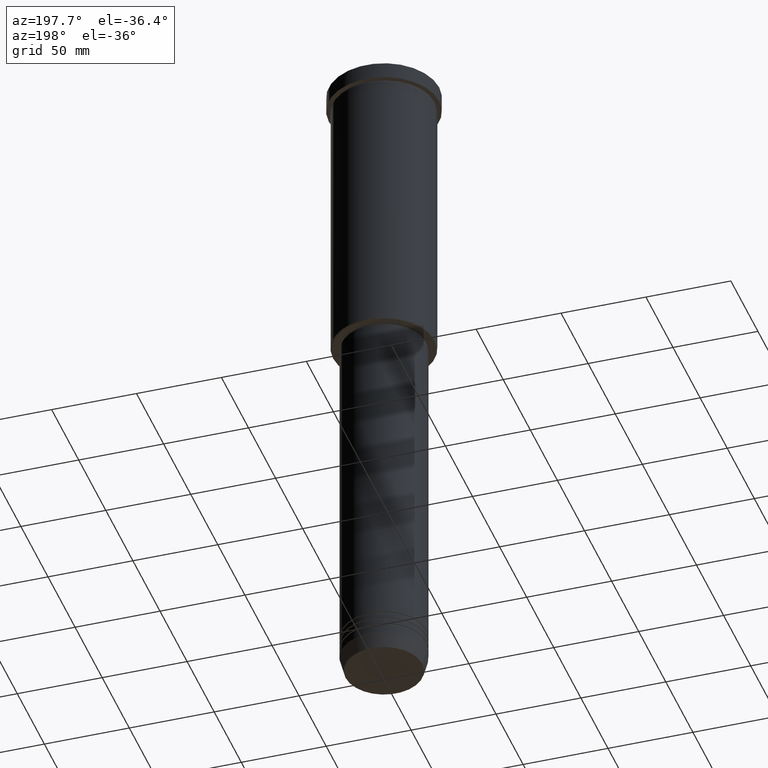
[diagram: clean part render]
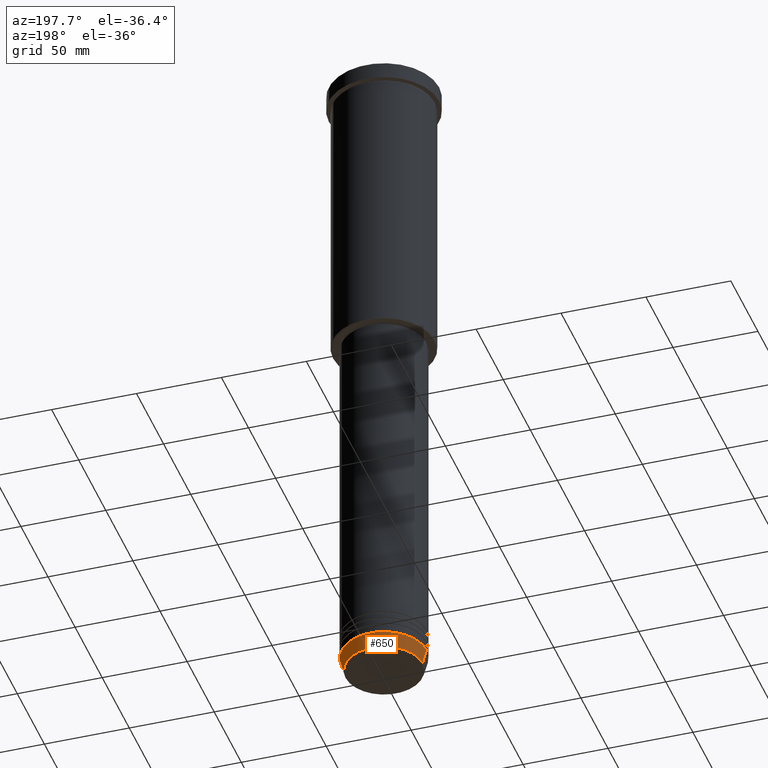
[diagram: same view with one face highlighted and labeled with its STEP entity id]
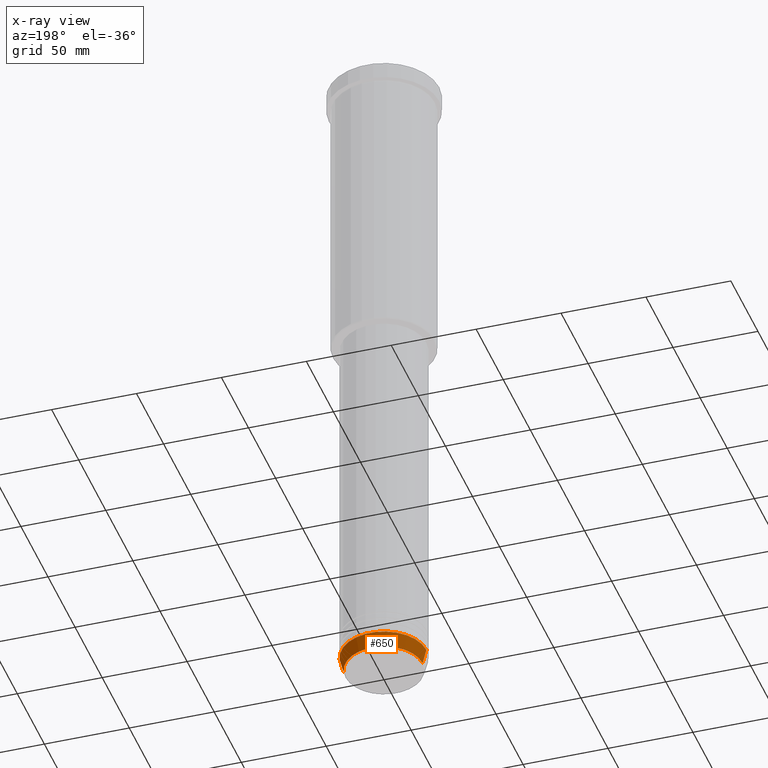
[diagram: x-ray of the same camera — body ghosted, the highlighted face saturated]
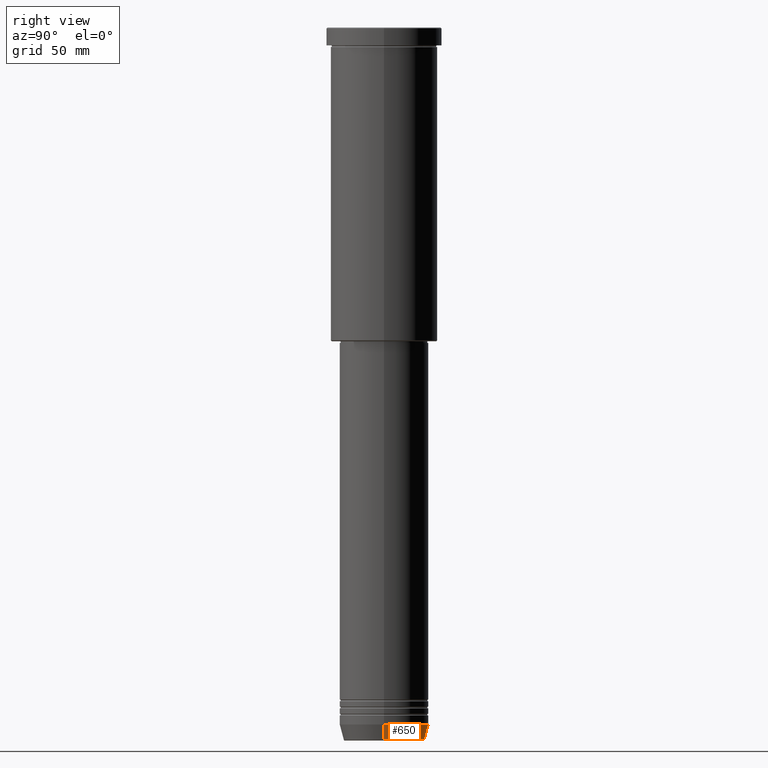
[diagram: same view with one face highlighted and labeled with its STEP entity id]
A machine part, auxiliary view. The second image highlights one B-rep face of the part: STEP entity #650.
The next image is the same camera in x-ray: the body ghosted, the highlighted face saturated — about 0% of this face is hidden behind the body in this view.
A second angle (right view) of the same face is appended — the face is thin or edge-on in the first view.
In plain terms, the highlighted conical surface has half-angle 15 deg.
Its self-contained STEP definition (entity closure, byte-faithful):
#16 = FACE_OUTER_BOUND ( 'NONE', #591, .T. ) ;
#26 = VERTEX_POINT ( 'NONE', #149 ) ;
#79 = EDGE_CURVE ( 'NONE', #783, #26, #868, .T. ) ;
#95 = VERTEX_POINT ( 'NONE', #251 ) ;
#125 = CARTESIAN_POINT ( 'NONE',  ( 25.00000000000000000, 0.000000000000000000, -391.0000000000000000 ) ) ;
#149 = CARTESIAN_POINT ( 'NONE',  ( -22.68775668727494477, 2.920032929279452581E-15, -399.6294095225512706 ) ) ;
#165 = ORIENTED_EDGE ( 'NONE', *, *, #583, .F. ) ;
#222 = EDGE_CURVE ( 'NONE', #26, #95, #349, .T. ) ;
#251 = CARTESIAN_POINT ( 'NONE',  ( -25.00000000000000000, 3.061616997868383043E-15, -391.0000000000000000 ) ) ;
#256 = AXIS2_PLACEMENT_3D ( 'NONE', #1077, #1160, #329 ) ;
#269 = CARTESIAN_POINT ( 'NONE',  ( 25.00000000000000000, 0.000000000000000000, -391.0000000000000000 ) ) ;
#281 = DIRECTION ( 'NONE',  ( 0.2588190451025215166, 0.000000000000000000, 0.9659258262890679791 ) ) ;
#286 = DIRECTION ( 'NONE',  ( 1.000000000000000000, 0.000000000000000000, 0.000000000000000000 ) ) ;
#288 = VECTOR ( 'NONE', #281, 1000.000000000000114 ) ;
#290 = CONICAL_SURFACE ( 'NONE', #1103, 25.00000000000000000, 0.2617993877991502960 ) ;
#329 = DIRECTION ( 'NONE',  ( 1.000000000000000000, 0.000000000000000000, 0.000000000000000000 ) ) ;
#349 = LINE ( 'NONE', #1182, #1155 ) ;
#358 = LINE ( 'NONE', #269, #288 ) ;
#450 = ORIENTED_EDGE ( 'NONE', *, *, #222, .T. ) ;
#472 = CARTESIAN_POINT ( 'NONE',  ( 0.000000000000000000, 0.000000000000000000, -391.0000000000000000 ) ) ;
#534 = DIRECTION ( 'NONE',  ( -0.2588190451025215166, 3.169619151431774802E-17, 0.9659258262890679791 ) ) ;
#583 = EDGE_CURVE ( 'NONE', #783, #1119, #358, .T. ) ;
#591 = EDGE_LOOP ( 'NONE', ( #630, #450, #758, #165 ) ) ;
#615 = AXIS2_PLACEMENT_3D ( 'NONE', #729, #1107, #286 ) ;
#630 = ORIENTED_EDGE ( 'NONE', *, *, #79, .T. ) ;
#645 = EDGE_CURVE ( 'NONE', #1119, #95, #1084, .T. ) ;
#650 = ADVANCED_FACE ( 'NONE', ( #16 ), #290, .T. ) ;
#729 = CARTESIAN_POINT ( 'NONE',  ( 0.000000000000000000, 0.000000000000000000, -391.0000000000000000 ) ) ;
#758 = ORIENTED_EDGE ( 'NONE', *, *, #645, .F. ) ;
#783 = VERTEX_POINT ( 'NONE', #1128 ) ;
#868 = CIRCLE ( 'NONE', #256, 22.68775668727494477 ) ;
#933 = DIRECTION ( 'NONE',  ( 1.000000000000000000, 0.000000000000000000, 0.000000000000000000 ) ) ;
#1077 = CARTESIAN_POINT ( 'NONE',  ( 0.000000000000000000, 0.000000000000000000, -399.6294095225512706 ) ) ;
#1084 = CIRCLE ( 'NONE', #615, 25.00000000000000000 ) ;
#1103 = AXIS2_PLACEMENT_3D ( 'NONE', #472, #1111, #933 ) ;
#1107 = DIRECTION ( 'NONE',  ( -0.000000000000000000, -0.000000000000000000, 1.000000000000000000 ) ) ;
#1111 = DIRECTION ( 'NONE',  ( -0.000000000000000000, -0.000000000000000000, 1.000000000000000000 ) ) ;
#1119 = VERTEX_POINT ( 'NONE', #125 ) ;
#1128 = CARTESIAN_POINT ( 'NONE',  ( 22.68775668727494477, 0.000000000000000000, -399.6294095225512706 ) ) ;
#1155 = VECTOR ( 'NONE', #534, 1000.000000000000114 ) ;
#1160 = DIRECTION ( 'NONE',  ( -0.000000000000000000, -0.000000000000000000, 1.000000000000000000 ) ) ;
#1182 = CARTESIAN_POINT ( 'NONE',  ( -25.00000000000000000, 3.061616997868383043E-15, -391.0000000000000000 ) ) ;